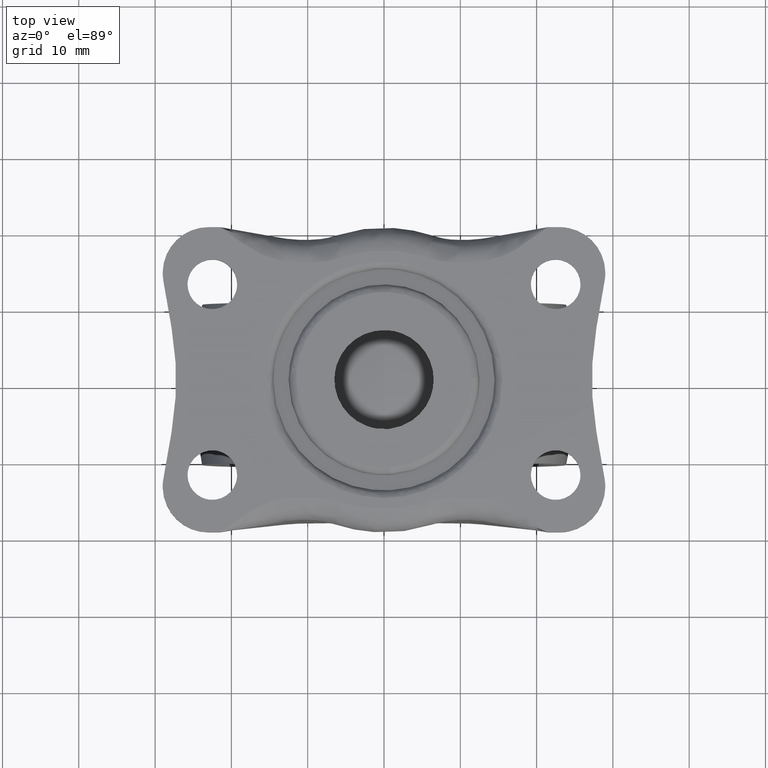
[diagram: clean part render]
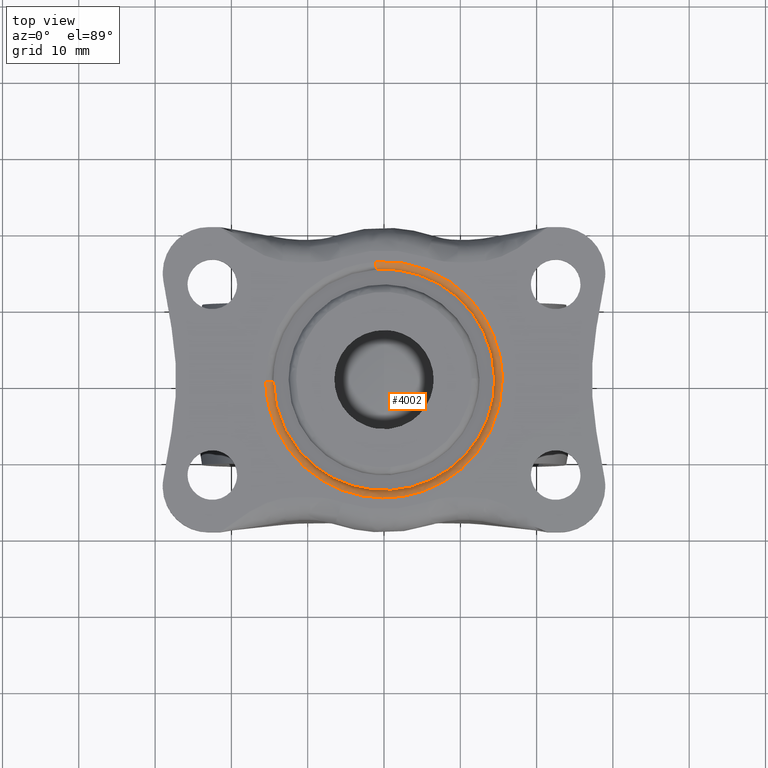
[diagram: same view with one face highlighted and labeled with its STEP entity id]
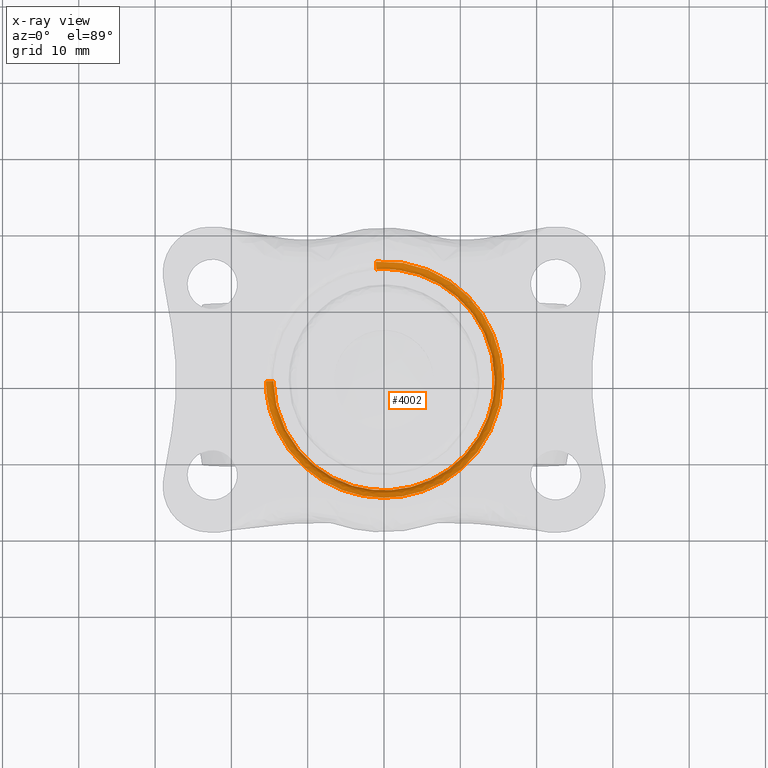
[diagram: x-ray of the same camera — body ghosted, the highlighted face saturated]
A machine part, top view. The second image highlights one B-rep face of the part: STEP entity #4002.
The next image is the same camera in x-ray: the body ghosted, the highlighted face saturated — about 0% of this face is hidden behind the body in this view.
In plain terms, the highlighted face is a freeform B-spline surface patch.
Its self-contained STEP definition (entity closure, byte-faithful):
#3867=CARTESIAN_POINT('',(-1.011300148202513,14.467117069467704,38.930462875432404));
#3868=CARTESIAN_POINT('',(-0.597257872711021,14.496060017295934,38.930462875432404));
#3869=CARTESIAN_POINT('',(-0.182237996111917,14.501275585416996,38.930462875432411));
#3870=CARTESIAN_POINT('',(14.319037589305086,14.683513581528921,38.930462875432411));
#3871=CARTESIAN_POINT('',(14.501275585416996,0.182237996111918,38.930462875432411));
#3872=CARTESIAN_POINT('',(14.683513581528921,-14.319037589305081,38.930462875432411));
#3873=CARTESIAN_POINT('',(0.182237996111919,-14.501275585416996,38.930462875432411));
#3874=CARTESIAN_POINT('',(-14.319037589305081,-14.683513581528922,38.930462875432411));
#3875=CARTESIAN_POINT('',(-14.501275585416996,-0.182237996111920,38.930462875432411));
#3876=CARTESIAN_POINT('',(-1.005724433586061,14.387353889124538,40.077537552448341));
#3877=CARTESIAN_POINT('',(-0.593964943844567,14.416137262549929,40.077537552448348));
#3878=CARTESIAN_POINT('',(-0.181233242913373,14.421324075093873,40.077537552448355));
#3879=CARTESIAN_POINT('',(14.240090832180497,14.602557318007241,40.077537552448327));
#3880=CARTESIAN_POINT('',(14.421324075093873,0.181233242913374,40.077537552448355));
#3881=CARTESIAN_POINT('',(14.602557318007241,-14.240090832180494,40.077537552448327));
#3882=CARTESIAN_POINT('',(0.181233242913375,-14.421324075093873,40.077537552448355));
#3883=CARTESIAN_POINT('',(-14.240090832180494,-14.602557318007246,40.077537552448327));
#3884=CARTESIAN_POINT('',(-14.421324075093873,-0.181233242913376,40.077537552448355));
#3885=CARTESIAN_POINT('',(-1.085713615575465,15.531636189674472,39.997579340887711));
#3886=CARTESIAN_POINT('',(-0.641205289611152,15.562708816913636,39.997579340887711));
#3887=CARTESIAN_POINT('',(-0.195647428713988,15.568308156864351,39.997579340887704));
#3888=CARTESIAN_POINT('',(15.372660728150366,15.763955585578346,39.997579340887704));
#3889=CARTESIAN_POINT('',(15.568308156864351,0.195647428713989,39.997579340887704));
#3890=CARTESIAN_POINT('',(15.763955585578346,-15.372660728150366,39.997579340887704));
#3891=CARTESIAN_POINT('',(0.195647428713990,-15.568308156864351,39.997579340887704));
#3892=CARTESIAN_POINT('',(-15.372660728150366,-15.763955585578346,39.997579340887704));
#3893=CARTESIAN_POINT('',(-15.568308156864351,-0.195647428713991,39.997579340887704));
#3901=(BOUNDED_SURFACE()B_SPLINE_SURFACE(2,2,((#3867,#3876,#3885),(#3868,#3877,#3886),(#3869,#3878,#3887),(#3870,#3879,#3888),(#3871,#3880,#3889),(#3872,#3881,#3890),(#3873,#3882,#3891),(#3874,#3883,#3892),(#3875,#3884,#3893)),.UNSPECIFIED.,.F.,.F.,.U.)B_SPLINE_SURFACE_WITH_KNOTS((3,2,2,2,3),(3,3),(0.0,1.031857188211207,26.828311494907300,52.624765801603402,78.421220108299494),(0.0,1.822374357600334),.UNSPECIFIED.)GEOMETRIC_REPRESENTATION_ITEM()RATIONAL_B_SPLINE_SURFACE(((0.889999306207728,0.584039691432150,0.889999443398094),(0.899812877300692,0.590479600983770,0.899813016003786),(0.910479801517150,0.597479502089823,0.910479941864514),(0.643806441786159,0.422481807547676,0.643806541026732),(0.910479801517150,0.597479502089823,0.910479941864514),(0.643806441786159,0.422481807547676,0.643806541026732),(0.910479801517150,0.597479502089823,0.910479941864514),(0.643806441786159,0.422481807547676,0.643806541026732),(0.910479801517150,0.597479502089823,0.910479941864514)))REPRESENTATION_ITEM('')SURFACE());
#3902=CARTESIAN_POINT('',(14.500000000000000,0.0,39.0));
#3903=VERTEX_POINT('',#3902);
#3904=CARTESIAN_POINT('',(-1.011132147962923,14.464702270677950,39.000000002512742));
#3905=VERTEX_POINT('',#3904);
#3906=CARTESIAN_POINT('',(14.500000000000000,0.0,39.0));
#3907=CARTESIAN_POINT('',(14.500000000000000,14.500000000000000,39.000000000000007));
#3908=CARTESIAN_POINT('',(0.0,14.500000000000000,39.0));
#3909=CARTESIAN_POINT('',(-0.506182180302766,14.500000000000004,39.0));
#3910=CARTESIAN_POINT('',(-1.011132147962923,14.464702270677945,39.000000002512749));
#3918=(BOUNDED_CURVE()B_SPLINE_CURVE(2,(#3906,#3907,#3908,#3909,#3910),.UNSPECIFIED.,.F.,.U.)B_SPLINE_CURVE_WITH_KNOTS((3,2,3),(0.500000000000000,0.750000000000000,0.762166313467695),.UNSPECIFIED.)CURVE()GEOMETRIC_REPRESENTATION_ITEM()RATIONAL_B_SPLINE_CURVE((1.0,0.707106781186548,1.0,0.985746277149413,0.972879876381081))REPRESENTATION_ITEM(''));
#3919=EDGE_CURVE('',#3903,#3905,#3918,.T.);
#3920=ORIENTED_EDGE('',*,*,#3919,.F.);
#3921=CARTESIAN_POINT('',(-14.498855140955230,-0.182207578316810,39.000000002587548));
#3922=VERTEX_POINT('',#3921);
#3923=CARTESIAN_POINT('',(-14.498855140955222,-0.182207578316810,39.000000002587555));
#3924=CARTESIAN_POINT('',(-14.318922983639867,-14.500000000000002,39.0));
#3925=CARTESIAN_POINT('',(0.0,-14.500000000000000,39.0));
#3926=CARTESIAN_POINT('',(14.500000000000000,-14.500000000000000,39.000000000000007));
#3927=CARTESIAN_POINT('',(14.500000000000000,0.0,39.0));
#3935=(BOUNDED_CURVE()B_SPLINE_CURVE(2,(#3923,#3924,#3925,#3926,#3927),.UNSPECIFIED.,.F.,.U.)B_SPLINE_CURVE_WITH_KNOTS((3,2,3),(0.002215704078471,0.250000000000000,0.500000000000000),.UNSPECIFIED.)CURVE()GEOMETRIC_REPRESENTATION_ITEM()RATIONAL_B_SPLINE_CURVE((0.994854295643555,0.709702639984473,1.0,0.707106781186548,1.0))REPRESENTATION_ITEM(''));
#3936=EDGE_CURVE('',#3922,#3903,#3935,.T.);
#3937=ORIENTED_EDGE('',*,*,#3936,.F.);
#3938=CARTESIAN_POINT('',(-15.498776183558910,-0.194773618373334,40.0));
#3939=VERTEX_POINT('',#3938);
#3940=CARTESIAN_POINT('',(-14.498855140955232,-0.182207578316810,39.000000002587548));
#3941=CARTESIAN_POINT('',(-14.498855146130010,-0.182207578373643,39.999999996804348));
#3942=CARTESIAN_POINT('',(-15.498776183558912,-0.194773618373334,40.000000000000007));
#3950=(BOUNDED_CURVE()B_SPLINE_CURVE(2,(#3940,#3941,#3942),.UNSPECIFIED.,.F.,.U.)B_SPLINE_CURVE_WITH_KNOTS((3,3),(-1.725134637974781,-0.274865359995315),.UNSPECIFIED.)CURVE()GEOMETRIC_REPRESENTATION_ITEM()RATIONAL_B_SPLINE_CURVE((0.883342147759533,0.624617225658977,0.883342148483794))REPRESENTATION_ITEM(''));
#3951=EDGE_CURVE('',#3922,#3939,#3950,.T.);
#3952=ORIENTED_EDGE('',*,*,#3951,.T.);
#3953=CARTESIAN_POINT('',(15.500000000000000,0.0,40.0));
#3954=VERTEX_POINT('',#3953);
#3955=CARTESIAN_POINT('',(15.500000000000000,0.0,40.0));
#3956=CARTESIAN_POINT('',(15.500000000000004,-15.500000000000004,39.999999999999993));
#3957=CARTESIAN_POINT('',(0.0,-15.500000000000000,40.0));
#3958=CARTESIAN_POINT('',(-15.306434913165440,-15.499999999999995,39.999999999999993));
#3959=CARTESIAN_POINT('',(-15.498776183558917,-0.194773618373334,40.0));
#3967=(BOUNDED_CURVE()B_SPLINE_CURVE(2,(#3955,#3956,#3957,#3958,#3959),.UNSPECIFIED.,.F.,.U.)B_SPLINE_CURVE_WITH_KNOTS((3,2,3),(0.500000000000000,0.750000000000000,0.997784295917156),.UNSPECIFIED.)CURVE()GEOMETRIC_REPRESENTATION_ITEM()RATIONAL_B_SPLINE_CURVE((1.0,0.707106781186548,1.0,0.709702639989596,0.994854295633490))REPRESENTATION_ITEM(''));
#3968=EDGE_CURVE('',#3954,#3939,#3967,.T.);
#3969=ORIENTED_EDGE('',*,*,#3968,.F.);
#3970=CARTESIAN_POINT('',(-1.080865399485148,15.462267940823351,40.0));
#3971=VERTEX_POINT('',#3970);
#3972=CARTESIAN_POINT('',(-1.080865399485148,15.462267940823349,39.999999999999993));
#3973=CARTESIAN_POINT('',(-0.541091296382306,15.499999999999996,39.999999999999993));
#3974=CARTESIAN_POINT('',(0.0,15.500000000000000,40.0));
#3975=CARTESIAN_POINT('',(15.500000000000004,15.500000000000004,39.999999999999993));
#3976=CARTESIAN_POINT('',(15.500000000000000,0.0,40.0));
#3984=(BOUNDED_CURVE()B_SPLINE_CURVE(2,(#3972,#3973,#3974,#3975,#3976),.UNSPECIFIED.,.F.,.U.)B_SPLINE_CURVE_WITH_KNOTS((3,2,3),(0.237833686527947,0.250000000000000,0.500000000000000),.UNSPECIFIED.)CURVE()GEOMETRIC_REPRESENTATION_ITEM()RATIONAL_B_SPLINE_CURVE((0.972879876371865,0.985746277144308,1.0,0.707106781186548,1.0))REPRESENTATION_ITEM(''));
#3985=EDGE_CURVE('',#3971,#3954,#3984,.T.);
#3986=ORIENTED_EDGE('',*,*,#3985,.F.);
#3987=CARTESIAN_POINT('',(-1.011132147962923,14.464702270677954,39.000000002512735));
#3988=CARTESIAN_POINT('',(-1.011132148194354,14.464702275699498,39.999999992620516));
#3989=CARTESIAN_POINT('',(-1.080865399485148,15.462267940823351,40.0));
#3997=(BOUNDED_CURVE()B_SPLINE_CURVE(2,(#3987,#3988,#3989),.UNSPECIFIED.,.F.,.U.)B_SPLINE_CURVE_WITH_KNOTS((3,3),(-1.725134638128223,-0.274865364285812),.UNSPECIFIED.)CURVE()GEOMETRIC_REPRESENTATION_ITEM()RATIONAL_B_SPLINE_CURVE((0.863472073575285,0.610566962079649,0.863472072733343))REPRESENTATION_ITEM(''));
#3998=EDGE_CURVE('',#3905,#3971,#3997,.T.);
#3999=ORIENTED_EDGE('',*,*,#3998,.F.);
#4000=EDGE_LOOP('',(#3920,#3937,#3952,#3969,#3986,#3999));
#4001=FACE_OUTER_BOUND('',#4000,.T.);
#4002=ADVANCED_FACE('',(#4001),#3901,.T.);